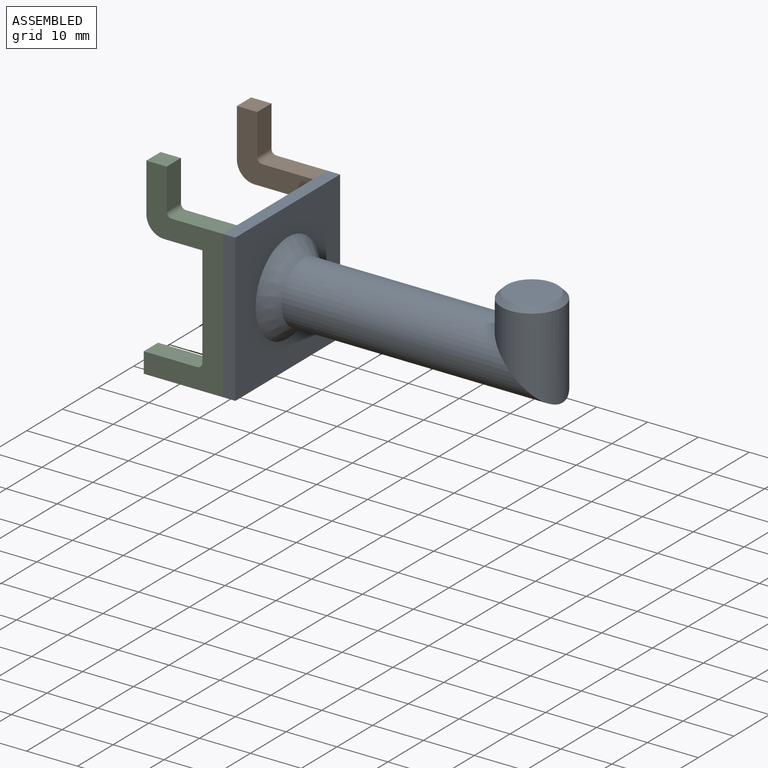
[diagram: assembled view]
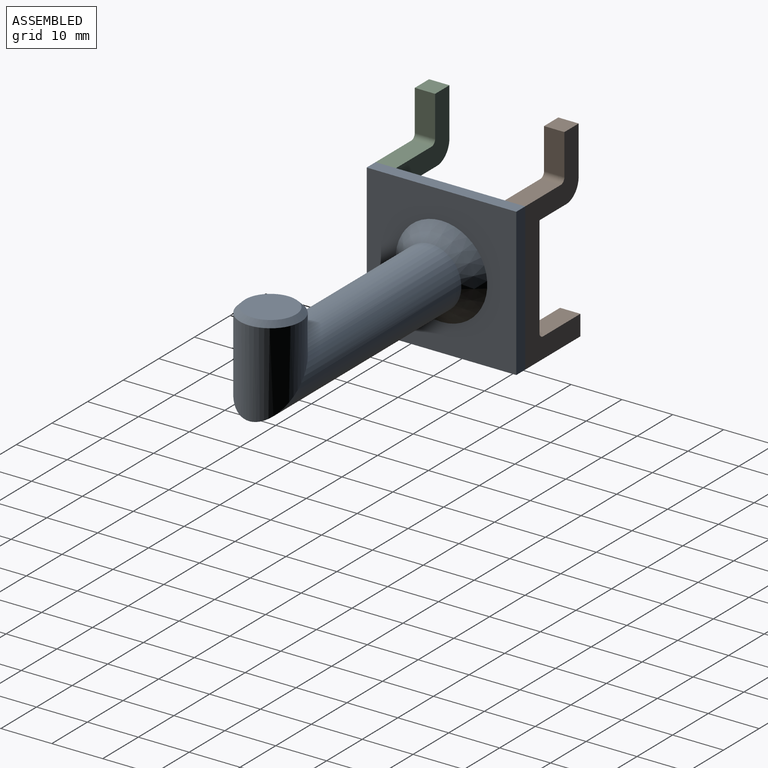
[diagram: assembled view, second angle]
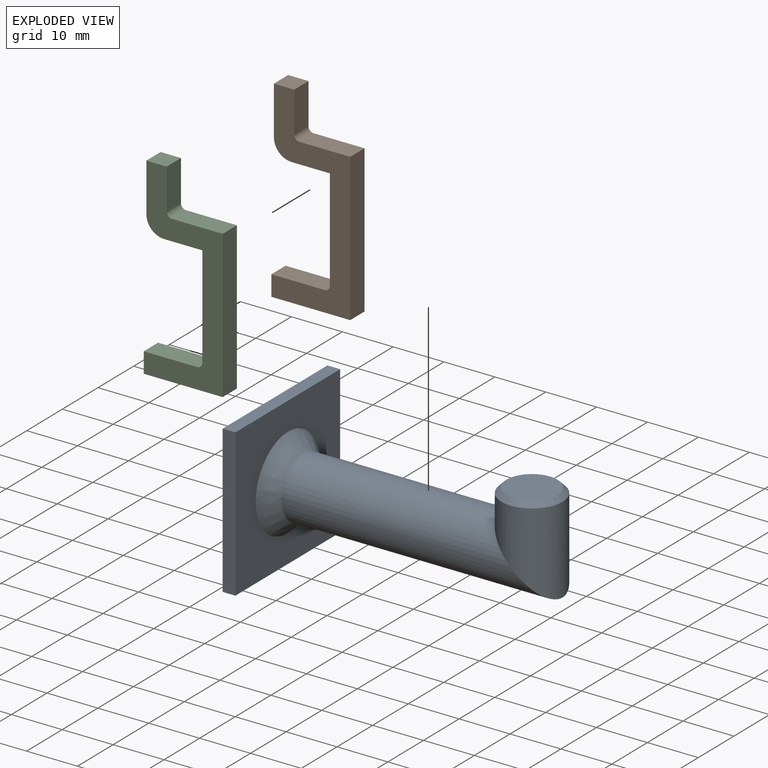
[diagram: exploded view]
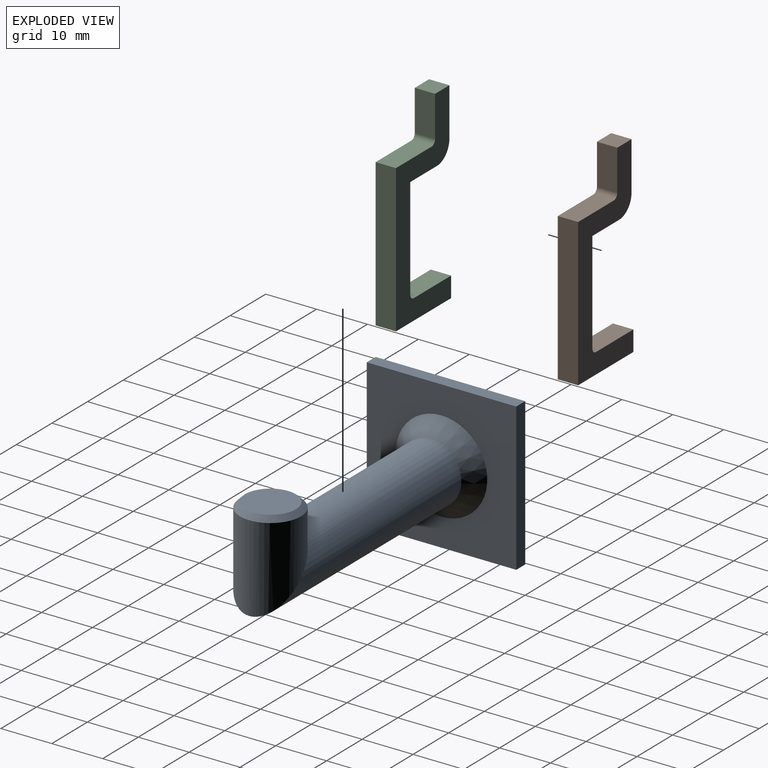
[diagram: exploded view, second angle]
ASSEMBLY  parts=3 mates=2
PART A: 11 faces, bbox 56.5x29.4x29 mm
  f0: plane 29x2.5mm, normal (0,1,0), area 72.5mm2, adj f1,f3,f4,f5
  f1: plane 29.4x2.5mm, normal (0,0,1), area 73.5mm2, adj f0,f2,f4,f5
  f2: plane 29x2.5mm, normal (0,-1,0), area 72.5mm2, adj f1,f3,f4,f5
  f3: plane 29.4x2.5mm, normal (0,0,-1), area 73.5mm2, adj f0,f2,f4,f5
  f4: plane 29.4x29mm, normal (1,0,0), area 598.1mm2, adj f0,f1,f2,f3,f9
  f5: plane 29.4x29mm, normal (-1,0,0), area 852.6mm2, adj f0,f1,f2,f3
  f6: plane 10x10mm, normal (0,0,1), area 78.5mm2, adj f10
  f7: cylinder r=6mm len=17mm, axis (0,0,1), area 414.7mm2, adj f8,f10
  f8: cylinder r=6mm len=51mm, axis (1,0,0), area 1696.5mm2, adj f7,f9
  f9: cone r=6mm half-angle=45deg, axis (-1,0,0), area 199.9mm2, adj f4,f8
  f10: cone r=5mm half-angle=45deg, axis (0,0,-1), area 48.9mm2, adj f6,f7
PART B: 15 faces, bbox 15.5x4x38 mm
  f0: plane 4x4mm, normal (0,0,1), area 16mm2, adj f2,f3,f8,f10
  f1: plane 4x4mm, normal (-1,0,0), area 16mm2, adj f8,f9,f10,f11
  f2: plane 9.5x4mm, normal (-1,0,0), area 38mm2, adj f0,f8,f10,f12
  f3: plane 8x4mm, normal (1,0,0), area 32mm2, adj f0,f8,f10,f13
  f4: plane 10x4mm, normal (0,0,1), area 40mm2, adj f6,f8,f10,f13
  f5: plane 7.5x4mm, normal (0,0,-1), area 30mm2, adj f7,f8,f10,f12
  f6: plane 29x4mm, normal (1,0,0), area 116mm2, adj f4,f8,f9,f10
  f7: plane 20x4mm, normal (-1,0,0), area 80mm2, adj f5,f8,f10,f14
  f8: plane 38x15.5mm, normal (0,1,0), area 239.8mm2, adj f0,f1,f2,f3,f4,f5,f6,f7
  f9: plane 15.5x4mm, normal (0,0,-1), area 62mm2, adj f1,f6,f8,f10
  f10: plane 38x15.5mm, normal (0,-1,0), area 239.8mm2, adj f0,f1,f2,f3,f4,f5,f6,f7
  f11: plane 10.5x4mm, normal (0,0,1), area 42mm2, adj f1,f8,f10,f14
  f12: cylinder r=3.5mm len=4mm, axis (0,1,0), area 22mm2, adj f2,f5,f8,f10
  f13: cylinder r=1mm len=4mm, axis (0,1,0), area 6.3mm2, adj f3,f4,f8,f10
  f14: cylinder r=1mm len=4mm, axis (0,-1,0), area 6.3mm2, adj f7,f8,f10,f11
PART C: same geometry as B
PLACE A t=(-29.32,12.9,-10.68)mm
PLACE B t=(-29.32,12.9,-10.68)mm
PLACE C t=(-29.32,-12.5,-10.68)mm
MATE fastened C.f10 <-> A.f2  axis (0,-1,0) through (-27.32,-14.5,16.32)mm
MATE fastened B.f8 <-> A.f0  axis (0,1,0) through (-27.32,14.9,16.32)mm
